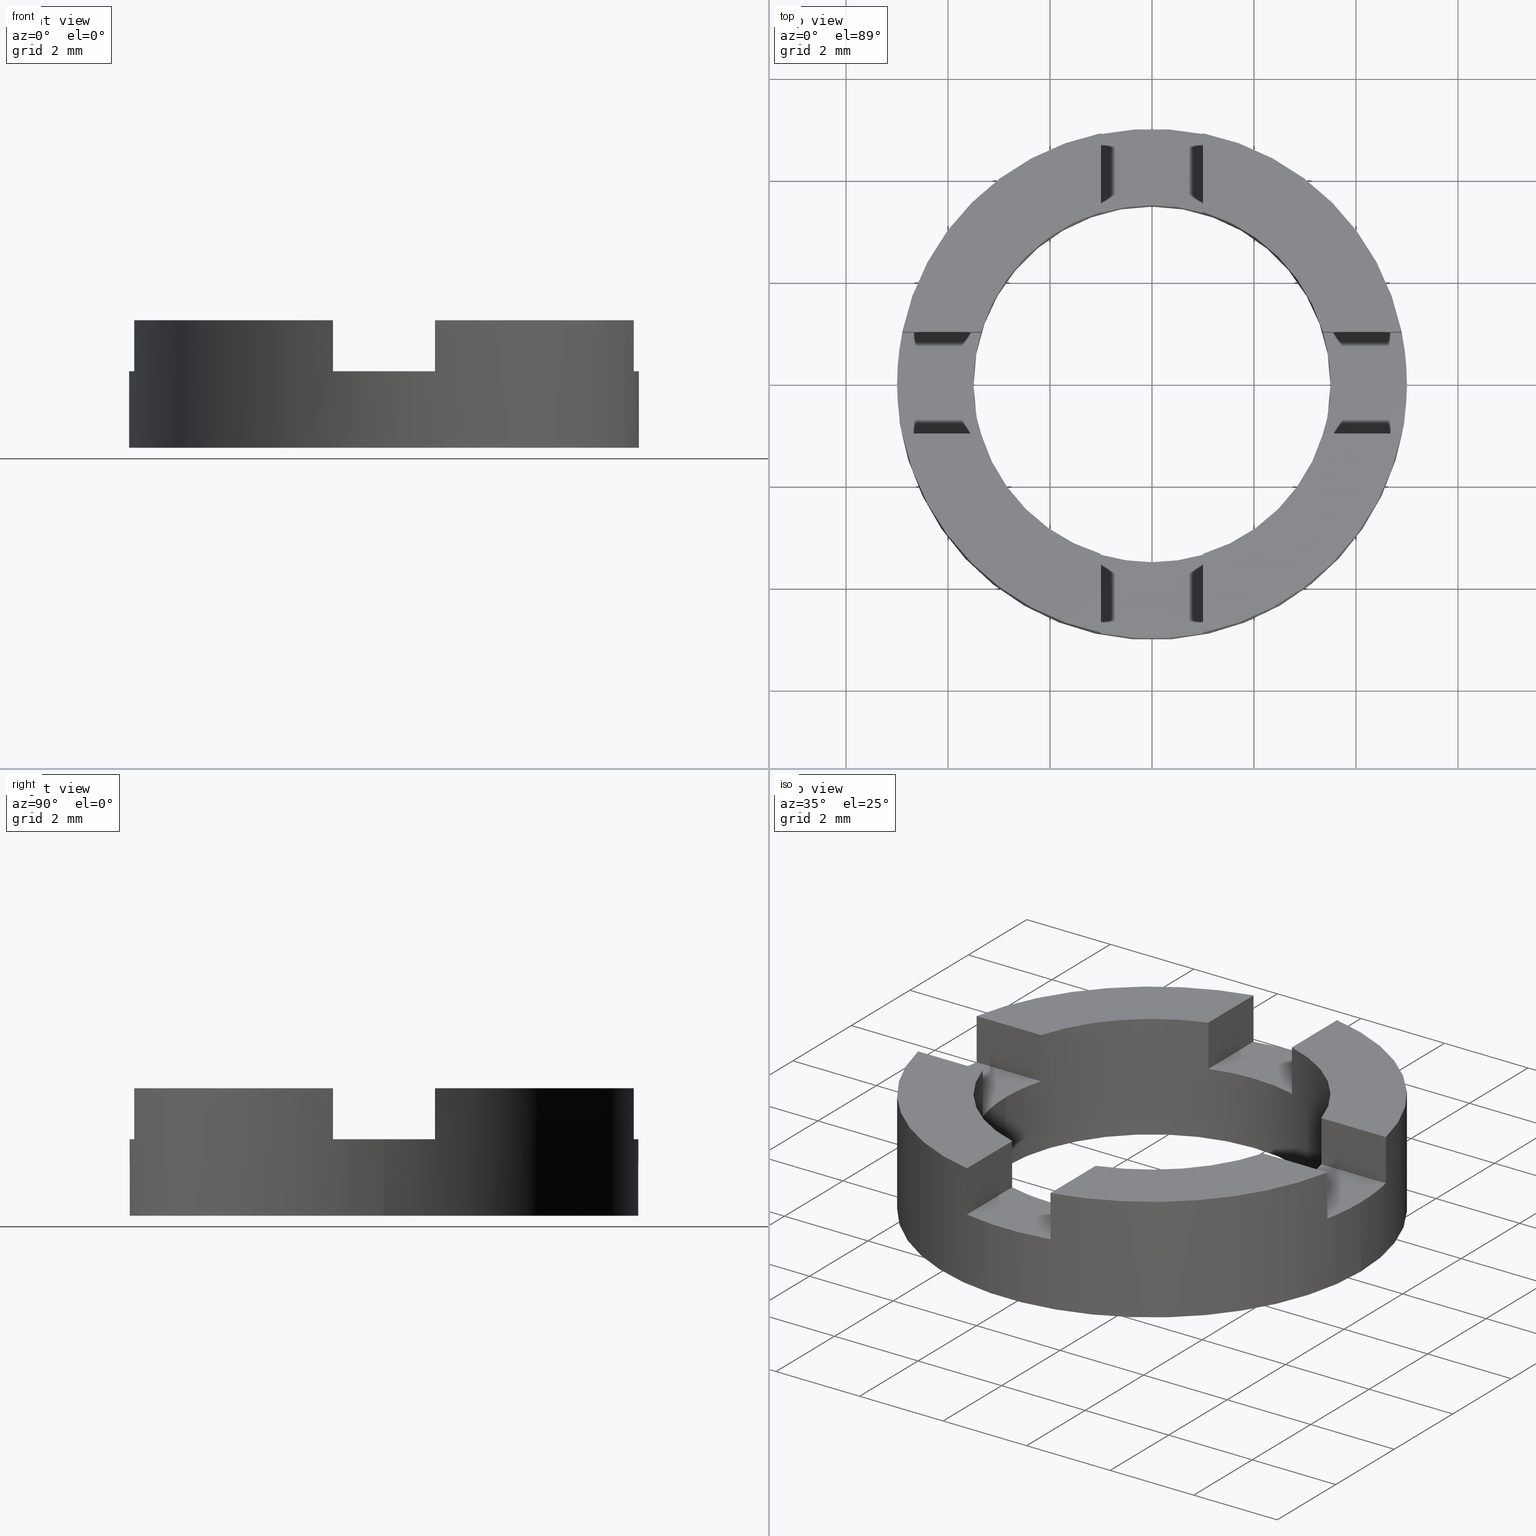
[diagram: canonical four-view strip — front | top / right | iso, engineering-drawing reading convention]
A machine part, canonical four-view strip (front | top / right | iso — engineering-drawing reading convention). The complete STEP part file that produces these views, byte-faithful:
ISO-10303-21;
HEADER;
FILE_DESCRIPTION (( 'STEP AP203' ),
    '1' );
FILE_NAME ('514026.STEP',
    '2024-12-26T02:52:09',
    ( 'MSI' ),
    ( '' ),
    'SwSTEP 2.0',
    'SolidWorks 2020',
    '' );
FILE_SCHEMA (( 'CONFIG_CONTROL_DESIGN' ));
ENDSEC;

DATA;
#1 = CARTESIAN_POINT ( 'NONE',  ( 3.305037895306199403, 1.000000000000045297, 1.500000000000000000 ) ) ;
#2 = CARTESIAN_POINT ( 'NONE',  ( 1.000000000000347500, -3.305037895306153661, 1.500000000000000000 ) ) ;
#3 = FACE_OUTER_BOUND ( 'NONE', #324, .T. ) ;
#4 = DIRECTION ( 'NONE',  ( 1.000000000000000000, 0.000000000000000000, 0.000000000000000000 ) ) ;
#5 = FACE_OUTER_BOUND ( 'NONE', #126, .T. ) ;
#6 = CARTESIAN_POINT ( 'NONE',  ( -3.354101966249594557, -1.000000000000301981, 2.500000000000000000 ) ) ;
#7 = PLANE ( 'NONE',  #491 ) ;
#8 = LINE ( 'NONE', #458, #266 ) ;
#9 = CARTESIAN_POINT ( 'NONE',  ( 3.354101966249698030, -0.9999999999999547029, 2.500000000000000000 ) ) ;
#10 = VECTOR ( 'NONE', #238, 1000.000000000000000 ) ;
#11 = DIRECTION ( 'NONE',  ( -1.000000000000000000, 0.000000000000000000, 0.000000000000000000 ) ) ;
#12 = DIRECTION ( 'NONE',  ( 1.000000000000000000, 0.000000000000000000, -0.000000000000000000 ) ) ;
#13 = CIRCLE ( 'NONE', #182, 5.000000000000000000 ) ;
#14 = DIRECTION ( 'NONE',  ( -0.000000000000000000, -0.000000000000000000, -1.000000000000000000 ) ) ;
#15 = CARTESIAN_POINT ( 'NONE',  ( -3.305037895305852125, -1.000000000000301981, 1.500000000000000000 ) ) ;
#16 = DIRECTION ( 'NONE',  ( 1.279323200775837961E-16, -1.000000000000000000, 0.000000000000000000 ) ) ;
#17 = EDGE_CURVE ( 'NONE', #327, #613, #662, .T. ) ;
#18 = DIRECTION ( 'NONE',  ( 0.000000000000000000, 0.000000000000000000, 1.000000000000000000 ) ) ;
#19 = DIRECTION ( 'NONE',  ( 1.000000000000000000, 0.000000000000000000, 0.000000000000000000 ) ) ;
#20 = DIRECTION ( 'NONE',  ( 1.000000000000000000, 0.000000000000000000, 0.000000000000000000 ) ) ;
#21 =( NAMED_UNIT ( * ) PLANE_ANGLE_UNIT ( ) SI_UNIT ( $, .RADIAN. ) );
#22 = DIRECTION ( 'NONE',  ( 1.000000000000000000, 0.000000000000000000, -0.000000000000000000 ) ) ;
#23 = EDGE_CURVE ( 'NONE', #170, #103, #405, .T. ) ;
#24 = AXIS2_PLACEMENT_3D ( 'NONE', #508, #407, #743 ) ;
#25 = CARTESIAN_POINT ( 'NONE',  ( 1.000000000000347722, -4.898979485566285597, 2.500000000000000000 ) ) ;
#26 = ORIENTED_EDGE ( 'NONE', *, *, #468, .T. ) ;
#27 = CARTESIAN_POINT ( 'NONE',  ( -3.305037895305853013, 0.9999999999996979083, 1.500000000000000000 ) ) ;
#28 = VERTEX_POINT ( 'NONE', #9 ) ;
#29 =( NAMED_UNIT ( * ) SI_UNIT ( $, .STERADIAN. ) SOLID_ANGLE_UNIT ( ) );
#30 = ORIENTED_EDGE ( 'NONE', *, *, #721, .F. ) ;
#31 = VERTEX_POINT ( 'NONE', #193 ) ;
#32 = AXIS2_PLACEMENT_3D ( 'NONE', #263, #339, #220 ) ;
#33 = DIRECTION ( 'NONE',  ( -0.000000000000000000, -0.000000000000000000, -1.000000000000000000 ) ) ;
#34 = EDGE_LOOP ( 'NONE', ( #36, #146, #288, #422 ) ) ;
#35 = AXIS2_PLACEMENT_3D ( 'NONE', #549, #47, #133 ) ;
#36 = ORIENTED_EDGE ( 'NONE', *, *, #551, .F. ) ;
#37 = CARTESIAN_POINT ( 'NONE',  ( -3.500000000000000000, 0.000000000000000000, 0.000000000000000000 ) ) ;
#38 = ORIENTED_EDGE ( 'NONE', *, *, #468, .F. ) ;
#39 = ORIENTED_EDGE ( 'NONE', *, *, #446, .T. ) ;
#40 = ADVANCED_FACE ( 'NONE', ( #113 ), #375, .F. ) ;
#41 = CARTESIAN_POINT ( 'NONE',  ( -4.898979485566417935, 0.9999999999996975752, 1.500000000000000000 ) ) ;
#42 = ORIENTED_EDGE ( 'NONE', *, *, #750, .F. ) ;
#43 = APPROVAL_ROLE ( '' ) ;
#44 = VERTEX_POINT ( 'NONE', #499 ) ;
#45 = CARTESIAN_POINT ( 'NONE',  ( 3.354101966249671385, 1.000000000000045297, 2.500000000000000000 ) ) ;
#46 = CARTESIAN_POINT ( 'NONE',  ( 3.305037895306199847, -0.9999999999999547029, 2.500000000000000000 ) ) ;
#47 = DIRECTION ( 'NONE',  ( 0.000000000000000000, 0.000000000000000000, -1.000000000000000000 ) ) ;
#48 = CARTESIAN_POINT ( 'NONE',  ( 0.000000000000000000, 0.000000000000000000, 2.500000000000000000 ) ) ;
#49 = CARTESIAN_POINT ( 'NONE',  ( -4.898979485566295367, -1.000000000000302425, 2.500000000000000000 ) ) ;
#50 = ORIENTED_EDGE ( 'NONE', *, *, #358, .T. ) ;
#51 = AXIS2_PLACEMENT_3D ( 'NONE', #189, #236, #285 ) ;
#52 = ORIENTED_EDGE ( 'NONE', *, *, #179, .T. ) ;
#53 = MANIFOLD_SOLID_BREP ( '�г�-����1', #307 ) ;
#54 = PLANE ( 'NONE',  #575 ) ;
#55 = CC_DESIGN_PERSON_AND_ORGANIZATION_ASSIGNMENT ( #623, #674, ( #253 ) ) ;
#56 = DIRECTION ( 'NONE',  ( -2.558646401551675429E-16, 1.000000000000000000, 0.000000000000000000 ) ) ;
#57 = ORIENTED_EDGE ( 'NONE', *, *, #446, .F. ) ;
#58 = EDGE_LOOP ( 'NONE', ( #436, #411, #423, #445 ) ) ;
#59 = DIRECTION ( 'NONE',  ( -1.000000000000000000, 0.000000000000000000, 0.000000000000000000 ) ) ;
#60 = VERTEX_POINT ( 'NONE', #317 ) ;
#61 = PLANE ( 'NONE',  #728 ) ;
#62 = AXIS2_PLACEMENT_3D ( 'NONE', #518, #512, #20 ) ;
#63 = ADVANCED_BREP_SHAPE_REPRESENTATION ( '514026', ( #53, #479 ), #328 ) ;
#64 = ORIENTED_EDGE ( 'NONE', *, *, #667, .T. ) ;
#65 = DIRECTION ( 'NONE',  ( 0.000000000000000000, 0.000000000000000000, 1.000000000000000000 ) ) ;
#66 = ORIENTED_EDGE ( 'NONE', *, *, #218, .F. ) ;
#67 = DIRECTION ( 'NONE',  ( 0.000000000000000000, 0.000000000000000000, 1.000000000000000000 ) ) ;
#68 = ORIENTED_EDGE ( 'NONE', *, *, #358, .F. ) ;
#69 = CARTESIAN_POINT ( 'NONE',  ( -4.898979485566417935, 0.9999999999996975752, 2.500000000000000000 ) ) ;
#70 = EDGE_CURVE ( 'NONE', #145, #170, #155, .T. ) ;
#71 = CARTESIAN_POINT ( 'NONE',  ( 0.000000000000000000, 0.000000000000000000, 1.500000000000000000 ) ) ;
#72 = DIRECTION ( 'NONE',  ( -0.000000000000000000, -0.000000000000000000, -1.000000000000000000 ) ) ;
#73 = CIRCLE ( 'NONE', #136, 3.500000000000000000 ) ;
#74 = CC_DESIGN_APPROVAL ( #192, ( #156 ) ) ;
#75 = DATE_AND_TIME ( #334, #366 ) ;
#76 = LINE ( 'NONE', #45, #634 ) ;
#77 = DIRECTION ( 'NONE',  ( -1.000000000000000000, -2.558646401551675429E-16, 0.000000000000000000 ) ) ;
#78 = SHAPE_DEFINITION_REPRESENTATION ( #740, #63 ) ;
#79 = LINE ( 'NONE', #367, #614 ) ;
#80 = EDGE_LOOP ( 'NONE', ( #402, #408, #441, #664 ) ) ;
#81 = CALENDAR_DATE ( 2024, 26, 12 ) ;
#82 = CIRCLE ( 'NONE', #160, 5.000000000000000000 ) ;
#83 = ORIENTED_EDGE ( 'NONE', *, *, #154, .T. ) ;
#84 = VECTOR ( 'NONE', #14, 1000.000000000000000 ) ;
#85 = EDGE_CURVE ( 'NONE', #331, #117, #134, .T. ) ;
#86 = PERSON_AND_ORGANIZATION ( #489, #453 ) ;
#87 = CARTESIAN_POINT ( 'NONE',  ( 0.000000000000000000, 0.000000000000000000, 2.500000000000000000 ) ) ;
#88 = VERTEX_POINT ( 'NONE', #41 ) ;
#89 = APPROVAL_DATE_TIME ( #627, #192 ) ;
#90 = VERTEX_POINT ( 'NONE', #727 ) ;
#91 = VECTOR ( 'NONE', #731, 1000.000000000000000 ) ;
#92 = VECTOR ( 'NONE', #630, 1000.000000000000000 ) ;
#93 = VECTOR ( 'NONE', #521, 1000.000000000000000 ) ;
#94 = LOCAL_TIME ( 10, 52, 9.000000000000000000, #602 ) ;
#95 = CIRCLE ( 'NONE', #51, 3.500000000000000000 ) ;
#96 = ORIENTED_EDGE ( 'NONE', *, *, #275, .F. ) ;
#97 = CARTESIAN_POINT ( 'NONE',  ( -3.354101966249774858, 0.9999999999996979083, 1.500000000000000000 ) ) ;
#98 = VERTEX_POINT ( 'NONE', #37 ) ;
#99 = AXIS2_PLACEMENT_3D ( 'NONE', #488, #540, #196 ) ;
#100 = CIRCLE ( 'NONE', #99, 3.500000000000000000 ) ;
#101 = ORIENTED_EDGE ( 'NONE', *, *, #720, .T. ) ;
#102 = CIRCLE ( 'NONE', #507, 3.500000000000000000 ) ;
#103 = VERTEX_POINT ( 'NONE', #437 ) ;
#104 = FACE_OUTER_BOUND ( 'NONE', #80, .T. ) ;
#105 = DIRECTION ( 'NONE',  ( 1.000000000000000000, 0.000000000000000000, -0.000000000000000000 ) ) ;
#106 = LINE ( 'NONE', #25, #355 ) ;
#107 = ORIENTED_EDGE ( 'NONE', *, *, #473, .T. ) ;
#108 = DIRECTION ( 'NONE',  ( 0.000000000000000000, 0.000000000000000000, 1.000000000000000000 ) ) ;
#109 = LINE ( 'NONE', #495, #92 ) ;
#110 = EDGE_LOOP ( 'NONE', ( #386, #661, #404, #412 ) ) ;
#111 = APPROVAL_STATUS ( 'not_yet_approved' ) ;
#112 = EDGE_LOOP ( 'NONE', ( #628, #647, #609, #447, #588, #382 ) ) ;
#113 = FACE_OUTER_BOUND ( 'NONE', #582, .T. ) ;
#114 = ORIENTED_EDGE ( 'NONE', *, *, #272, .F. ) ;
#115 = LINE ( 'NONE', #781, #119 ) ;
#116 = VECTOR ( 'NONE', #483, 1000.000000000000000 ) ;
#117 = VERTEX_POINT ( 'NONE', #97 ) ;
#118 = CARTESIAN_POINT ( 'NONE',  ( 5.000000000000000000, 6.123233995736766282E-16, 2.500000000000000000 ) ) ;
#119 = VECTOR ( 'NONE', #691, 1000.000000000000000 ) ;
#120 = LINE ( 'NONE', #535, #406 ) ;
#121 = VERTEX_POINT ( 'NONE', #210 ) ;
#122 = PRODUCT_RELATED_PRODUCT_CATEGORY ( 'detail', '', ( #244 ) ) ;
#123 = DIRECTION ( 'NONE',  ( -1.000000000000000000, -1.279323200775836975E-16, -0.000000000000000000 ) ) ;
#124 = EDGE_LOOP ( 'NONE', ( #57, #171, #430, #642, #336, #313, #635, #395, #147, #52, #376, #318 ) ) ;
#125 = LINE ( 'NONE', #486, #660 ) ;
#126 = EDGE_LOOP ( 'NONE', ( #680, #347, #572, #594 ) ) ;
#127 = ORIENTED_EDGE ( 'NONE', *, *, #709, .F. ) ;
#128 = ORIENTED_EDGE ( 'NONE', *, *, #260, .T. ) ;
#129 = FACE_OUTER_BOUND ( 'NONE', #543, .T. ) ;
#130 = ORIENTED_EDGE ( 'NONE', *, *, #190, .F. ) ;
#131 = CARTESIAN_POINT ( 'NONE',  ( -3.354101966249594557, -1.000000000000301981, 2.500000000000000000 ) ) ;
#132 = CARTESIAN_POINT ( 'NONE',  ( 3.354101966249671385, 1.000000000000045297, 1.500000000000000000 ) ) ;
#133 = DIRECTION ( 'NONE',  ( -1.000000000000000000, 0.000000000000000000, 0.000000000000000000 ) ) ;
#134 = CIRCLE ( 'NONE', #326, 3.500000000000000000 ) ;
#135 = EDGE_CURVE ( 'NONE', #651, #44, #392, .T. ) ;
#136 = AXIS2_PLACEMENT_3D ( 'NONE', #501, #65, #547 ) ;
#137 = LINE ( 'NONE', #753, #139 ) ;
#138 = ORIENTED_EDGE ( 'NONE', *, *, #217, .T. ) ;
#139 = VECTOR ( 'NONE', #464, 1000.000000000000000 ) ;
#140 = DIRECTION ( 'NONE',  ( 0.000000000000000000, 0.000000000000000000, 1.000000000000000000 ) ) ;
#141 = ORIENTED_EDGE ( 'NONE', *, *, #689, .T. ) ;
#142 = DIRECTION ( 'NONE',  ( -0.000000000000000000, -0.000000000000000000, -1.000000000000000000 ) ) ;
#143 = AXIS2_PLACEMENT_3D ( 'NONE', #2, #379, #735 ) ;
#144 = ORIENTED_EDGE ( 'NONE', *, *, #230, .F. ) ;
#145 = VERTEX_POINT ( 'NONE', #332 ) ;
#146 = ORIENTED_EDGE ( 'NONE', *, *, #603, .T. ) ;
#147 = ORIENTED_EDGE ( 'NONE', *, *, #425, .T. ) ;
#148 = VECTOR ( 'NONE', #590, 1000.000000000000000 ) ;
#149 = ORIENTED_EDGE ( 'NONE', *, *, #17, .F. ) ;
#150 = DIRECTION ( 'NONE',  ( -0.000000000000000000, -0.000000000000000000, -1.000000000000000000 ) ) ;
#151 = ORIENTED_EDGE ( 'NONE', *, *, #191, .F. ) ;
#152 = DIRECTION ( 'NONE',  ( 0.000000000000000000, -0.000000000000000000, -1.000000000000000000 ) ) ;
#154 = EDGE_CURVE ( 'NONE', #88, #304, #384, .T. ) ;
#153 = ORIENTED_EDGE ( 'NONE', *, *, #298, .F. ) ;
#155 = LINE ( 'NONE', #777, #148 ) ;
#156 = SECURITY_CLASSIFICATION ( '', '', #187 ) ;
#157 = ORIENTED_EDGE ( 'NONE', *, *, #260, .F. ) ;
#158 = ORIENTED_EDGE ( 'NONE', *, *, #775, .T. ) ;
#159 = CARTESIAN_POINT ( 'NONE',  ( 0.000000000000000000, 0.000000000000000000, 1.500000000000000000 ) ) ;
#160 = AXIS2_PLACEMENT_3D ( 'NONE', #48, #140, #194 ) ;
#161 = CARTESIAN_POINT ( 'NONE',  ( 3.354101966249698030, -0.9999999999999547029, 1.500000000000000000 ) ) ;
#162 = ADVANCED_FACE ( 'NONE', ( #378 ), #183, .T. ) ;
#163 = DIRECTION ( 'NONE',  ( 0.000000000000000000, -0.000000000000000000, 1.000000000000000000 ) ) ;
#164 = EDGE_CURVE ( 'NONE', #60, #28, #102, .T. ) ;
#165 = CARTESIAN_POINT ( 'NONE',  ( -3.354101966249774858, 0.9999999999996979083, 2.500000000000000000 ) ) ;
#166 = ORIENTED_EDGE ( 'NONE', *, *, #85, .F. ) ;
#167 = ADVANCED_FACE ( 'NONE', ( #670, #641 ), #228, .F. ) ;
#168 = CC_DESIGN_PERSON_AND_ORGANIZATION_ASSIGNMENT ( #197, #773, ( #244 ) ) ;
#169 = ORIENTED_EDGE ( 'NONE', *, *, #180, .F. ) ;
#170 = VERTEX_POINT ( 'NONE', #565 ) ;
#171 = ORIENTED_EDGE ( 'NONE', *, *, #621, .T. ) ;
#172 = AXIS2_PLACEMENT_3D ( 'NONE', #475, #524, #559 ) ;
#173 = DIRECTION ( 'NONE',  ( 0.000000000000000000, 0.000000000000000000, -1.000000000000000000 ) ) ;
#174 = CARTESIAN_POINT ( 'NONE',  ( -3.500000000000000000, 0.000000000000000000, 2.500000000000000000 ) ) ;
#175 = APPROVAL_STATUS ( 'not_yet_approved' ) ;
#176 = COORDINATED_UNIVERSAL_TIME_OFFSET ( 8, 0, .AHEAD. ) ;
#177 = DIRECTION ( 'NONE',  ( 0.000000000000000000, 0.000000000000000000, 1.000000000000000000 ) ) ;
#178 = PERSON_AND_ORGANIZATION ( #489, #453 ) ;
#179 = EDGE_CURVE ( 'NONE', #363, #145, #658, .T. ) ;
#180 = EDGE_CURVE ( 'NONE', #550, #707, #665, .T. ) ;
#181 = PERSON_AND_ORGANIZATION ( #489, #453 ) ;
#182 = AXIS2_PLACEMENT_3D ( 'NONE', #424, #509, #751 ) ;
#183 = PLANE ( 'NONE',  #242 ) ;
#184 = CALENDAR_DATE ( 2024, 26, 12 ) ;
#185 = DIRECTION ( 'NONE',  ( 1.000000000000000000, 1.279323200775837468E-16, 0.000000000000000000 ) ) ;
#186 = DATE_AND_TIME ( #184, #714 ) ;
#187 = SECURITY_CLASSIFICATION_LEVEL ( 'unclassified' ) ;
#188 = CARTESIAN_POINT ( 'NONE',  ( 0.000000000000000000, 0.000000000000000000, 0.000000000000000000 ) ) ;
#189 = CARTESIAN_POINT ( 'NONE',  ( 0.000000000000000000, 0.000000000000000000, 1.500000000000000000 ) ) ;
#190 = EDGE_CURVE ( 'NONE', #389, #28, #120, .T. ) ;
#191 = EDGE_CURVE ( 'NONE', #314, #349, #671, .T. ) ;
#192 = APPROVAL ( #111, 'δָ��' ) ;
#193 = CARTESIAN_POINT ( 'NONE',  ( 5.000000000000000000, 6.123233995736766282E-16, 1.500000000000000000 ) ) ;
#194 = DIRECTION ( 'NONE',  ( 1.000000000000000000, 0.000000000000000000, 0.000000000000000000 ) ) ;
#195 = DIRECTION ( 'NONE',  ( 1.000000000000000000, 0.000000000000000000, 0.000000000000000000 ) ) ;
#196 = DIRECTION ( 'NONE',  ( -1.000000000000000000, 0.000000000000000000, 0.000000000000000000 ) ) ;
#197 = PERSON_AND_ORGANIZATION ( #489, #453 ) ;
#198 = DIRECTION ( 'NONE',  ( -0.000000000000000000, -0.000000000000000000, -1.000000000000000000 ) ) ;
#199 = COORDINATED_UNIVERSAL_TIME_OFFSET ( 8, 0, .AHEAD. ) ;
#200 = CARTESIAN_POINT ( 'NONE',  ( -0.9999999999996526112, -3.354101966249788180, 2.500000000000000000 ) ) ;
#201 = EDGE_CURVE ( 'NONE', #354, #639, #137, .T. ) ;
#202 = DIRECTION ( 'NONE',  ( 0.000000000000000000, 0.000000000000000000, -1.000000000000000000 ) ) ;
#203 = AXIS2_PLACEMENT_3D ( 'NONE', #1, #484, #778 ) ;
#204 = DIRECTION ( 'NONE',  ( 0.000000000000000000, -0.000000000000000000, 1.000000000000000000 ) ) ;
#205 = ADVANCED_FACE ( 'NONE', ( #409 ), #467, .T. ) ;
#206 = DIRECTION ( 'NONE',  ( 0.000000000000000000, 0.000000000000000000, 1.000000000000000000 ) ) ;
#207 = CARTESIAN_POINT ( 'NONE',  ( -4.898979485566295367, -1.000000000000302425, 1.500000000000000000 ) ) ;
#208 = CARTESIAN_POINT ( 'NONE',  ( -3.305037895305853013, 0.9999999999996979083, 2.500000000000000000 ) ) ;
#209 = EDGE_CURVE ( 'NONE', #331, #98, #675, .T. ) ;
#210 = CARTESIAN_POINT ( 'NONE',  ( -3.354101966249594557, -1.000000000000301981, 1.500000000000000000 ) ) ;
#211 = ADVANCED_FACE ( 'NONE', ( #364 ), #600, .F. ) ;
#212 = AXIS2_PLACEMENT_3D ( 'NONE', #300, #108, #276 ) ;
#213 = DIRECTION ( 'NONE',  ( 0.000000000000000000, 0.000000000000000000, 1.000000000000000000 ) ) ;
#214 = CARTESIAN_POINT ( 'NONE',  ( -0.9999999999996523892, -4.898979485566426817, 2.500000000000000000 ) ) ;
#215 = VECTOR ( 'NONE', #759, 1000.000000000000000 ) ;
#216 = DIRECTION ( 'NONE',  ( -1.000000000000000000, 0.000000000000000000, -0.000000000000000000 ) ) ;
#217 = EDGE_CURVE ( 'NONE', #277, #702, #79, .T. ) ;
#218 = EDGE_CURVE ( 'NONE', #98, #639, #73, .T. ) ;
#219 = AXIS2_PLACEMENT_3D ( 'NONE', #663, #33, #273 ) ;
#220 = DIRECTION ( 'NONE',  ( 1.000000000000000000, 0.000000000000000000, 0.000000000000000000 ) ) ;
#221 = EDGE_CURVE ( 'NONE', #631, #291, #380, .T. ) ;
#222 = DIRECTION ( 'NONE',  ( 1.000000000000000000, 0.000000000000000000, 0.000000000000000000 ) ) ;
#223 = AXIS2_PLACEMENT_3D ( 'NONE', #237, #686, #342 ) ;
#224 = ADVANCED_FACE ( 'NONE', ( #620 ), #452, .T. ) ;
#225 = CC_DESIGN_PERSON_AND_ORGANIZATION_ASSIGNMENT ( #357, #283, ( #156 ) ) ;
#226 = LINE ( 'NONE', #208, #760 ) ;
#227 = PERSON_AND_ORGANIZATION_ROLE ( 'design_supplier' ) ;
#228 = PLANE ( 'NONE',  #172 ) ;
#229 = VECTOR ( 'NONE', #77, 1000.000000000000000 ) ;
#230 = EDGE_CURVE ( 'NONE', #145, #88, #633, .T. ) ;
#231 = DIRECTION ( 'NONE',  ( 0.000000000000000000, 0.000000000000000000, -1.000000000000000000 ) ) ;
#232 = LINE ( 'NONE', #654, #235 ) ;
#233 = DIRECTION ( 'NONE',  ( 0.000000000000000000, 0.000000000000000000, 1.000000000000000000 ) ) ;
#234 = DATE_TIME_ROLE ( 'classification_date' ) ;
#235 = VECTOR ( 'NONE', #553, 1000.000000000000000 ) ;
#236 = DIRECTION ( 'NONE',  ( 0.000000000000000000, -0.000000000000000000, 1.000000000000000000 ) ) ;
#237 = CARTESIAN_POINT ( 'NONE',  ( 0.000000000000000000, 0.000000000000000000, 2.500000000000000000 ) ) ;
#238 = DIRECTION ( 'NONE',  ( -1.279323200775837468E-16, 1.000000000000000000, -0.000000000000000000 ) ) ;
#239 = FACE_OUTER_BOUND ( 'NONE', #373, .T. ) ;
#240 = CIRCLE ( 'NONE', #385, 3.500000000000000000 ) ;
#241 = EDGE_CURVE ( 'NONE', #291, #121, #346, .T. ) ;
#242 = AXIS2_PLACEMENT_3D ( 'NONE', #768, #477, #105 ) ;
#243 = CIRCLE ( 'NONE', #212, 5.000000000000000000 ) ;
#244 = PRODUCT ( '514026', '514026', '', ( #534 ) ) ;
#245 = CARTESIAN_POINT ( 'NONE',  ( 1.000000000000347722, -4.898979485566285597, 2.500000000000000000 ) ) ;
#246 = CARTESIAN_POINT ( 'NONE',  ( 0.000000000000000000, 0.000000000000000000, 1.500000000000000000 ) ) ;
#247 = DIRECTION ( 'NONE',  ( 0.000000000000000000, 0.000000000000000000, -1.000000000000000000 ) ) ;
#248 = VECTOR ( 'NONE', #478, 1000.000000000000000 ) ;
#249 = DIRECTION ( 'NONE',  ( -1.000000000000000000, -1.279323200775837961E-16, 0.000000000000000000 ) ) ;
#250 = EDGE_CURVE ( 'NONE', #363, #121, #109, .T. ) ;
#251 = DIRECTION ( 'NONE',  ( 1.000000000000000000, 2.558646401551673950E-16, -0.000000000000000000 ) ) ;
#252 = DIRECTION ( 'NONE',  ( 0.000000000000000000, 0.000000000000000000, -1.000000000000000000 ) ) ;
#253 = PRODUCT_DEFINITION_FORMATION_WITH_SPECIFIED_SOURCE ( '�κ�', '', #244, .NOT_KNOWN. ) ;
#254 = VECTOR ( 'NONE', #185, 1000.000000000000000 ) ;
#255 = ADVANCED_FACE ( 'NONE', ( #345 ), #54, .F. ) ;
#256 = CIRCLE ( 'NONE', #223, 5.000000000000000000 ) ;
#257 = CARTESIAN_POINT ( 'NONE',  ( 0.000000000000000000, 0.000000000000000000, 2.500000000000000000 ) ) ;
#258 = CARTESIAN_POINT ( 'NONE',  ( 1.000000000000347500, -3.354101966249581235, 2.500000000000000000 ) ) ;
#259 = LINE ( 'NONE', #533, #525 ) ;
#260 = EDGE_CURVE ( 'NONE', #651, #613, #76, .T. ) ;
#261 = AXIS2_PLACEMENT_3D ( 'NONE', #257, #308, #711 ) ;
#262 = CYLINDRICAL_SURFACE ( 'NONE', #683, 3.500000000000000000 ) ;
#263 = CARTESIAN_POINT ( 'NONE',  ( 0.000000000000000000, 0.000000000000000000, 2.500000000000000000 ) ) ;
#264 = CARTESIAN_POINT ( 'NONE',  ( -1.000000000000000000, 3.305037895305897422, 1.500000000000000000 ) ) ;
#265 = ADVANCED_FACE ( 'NONE', ( #340 ), #505, .T. ) ;
#266 = VECTOR ( 'NONE', #198, 1000.000000000000000 ) ;
#267 = LINE ( 'NONE', #443, #771 ) ;
#268 = UNCERTAINTY_MEASURE_WITH_UNIT (LENGTH_MEASURE( 1.000000000000000082E-05 ), #519, 'distance_accuracy_value', 'NONE');
#269 = DIRECTION ( 'NONE',  ( 0.000000000000000000, 0.000000000000000000, -1.000000000000000000 ) ) ;
#270 = CARTESIAN_POINT ( 'NONE',  ( 0.000000000000000000, 0.000000000000000000, 2.500000000000000000 ) ) ;
#271 = CIRCLE ( 'NONE', #739, 3.500000000000000000 ) ;
#272 = EDGE_CURVE ( 'NONE', #277, #707, #95, .T. ) ;
#273 = DIRECTION ( 'NONE',  ( -1.000000000000000000, 0.000000000000000000, 0.000000000000000000 ) ) ;
#274 = CARTESIAN_POINT ( 'NONE',  ( 3.500000000000000000, 4.286263797015736595E-16, 1.500000000000000000 ) ) ;
#275 = EDGE_CURVE ( 'NONE', #354, #389, #100, .T. ) ;
#276 = DIRECTION ( 'NONE',  ( 1.000000000000000000, 0.000000000000000000, 0.000000000000000000 ) ) ;
#277 = VERTEX_POINT ( 'NONE', #455 ) ;
#278 = CC_DESIGN_APPROVAL ( #632, ( #608 ) ) ;
#279 = DIRECTION ( 'NONE',  ( -1.000000000000000000, 0.000000000000000000, 0.000000000000000000 ) ) ;
#280 = DIRECTION ( 'NONE',  ( -1.000000000000000000, 0.000000000000000000, 0.000000000000000000 ) ) ;
#281 = PLANE ( 'NONE',  #143 ) ;
#282 = EDGE_LOOP ( 'NONE', ( #416, #403, #615, #626, #101, #144 ) ) ;
#283 = PERSON_AND_ORGANIZATION_ROLE ( 'classification_officer' ) ;
#284 = ORIENTED_EDGE ( 'NONE', *, *, #733, .F. ) ;
#285 = DIRECTION ( 'NONE',  ( 1.000000000000000000, 0.000000000000000000, 0.000000000000000000 ) ) ;
#286 = EDGE_CURVE ( 'NONE', #659, #349, #625, .T. ) ;
#287 = DIRECTION ( 'NONE',  ( 0.000000000000000000, 0.000000000000000000, 1.000000000000000000 ) ) ;
#288 = ORIENTED_EDGE ( 'NONE', *, *, #737, .F. ) ;
#289 = DIRECTION ( 'NONE',  ( 0.000000000000000000, 0.000000000000000000, 1.000000000000000000 ) ) ;
#290 = ORIENTED_EDGE ( 'NONE', *, *, #537, .T. ) ;
#291 = VERTEX_POINT ( 'NONE', #6 ) ;
#292 = DIRECTION ( 'NONE',  ( 1.000000000000000000, 1.279323200775837468E-16, 0.000000000000000000 ) ) ;
#293 = ORIENTED_EDGE ( 'NONE', *, *, #603, .F. ) ;
#294 = EDGE_LOOP ( 'NONE', ( #673, #545, #157, #574, #153, #704, #169, #141, #310, #166, #413, #68 ) ) ;
#295 = DIRECTION ( 'NONE',  ( -1.000000000000000000, 0.000000000000000000, -0.000000000000000000 ) ) ;
#296 = CARTESIAN_POINT ( 'NONE',  ( 0.000000000000000000, 0.000000000000000000, 1.500000000000000000 ) ) ;
#297 = EDGE_CURVE ( 'NONE', #591, #397, #82, .T. ) ;
#298 = EDGE_CURVE ( 'NONE', #277, #44, #640, .T. ) ;
#299 = CARTESIAN_POINT ( 'NONE',  ( 0.000000000000000000, 0.000000000000000000, 2.500000000000000000 ) ) ;
#300 = CARTESIAN_POINT ( 'NONE',  ( 0.000000000000000000, 0.000000000000000000, 0.000000000000000000 ) ) ;
#301 = ORIENTED_EDGE ( 'NONE', *, *, #744, .F. ) ;
#302 = AXIS2_PLACEMENT_3D ( 'NONE', #159, #204, #461 ) ;
#303 = DIRECTION ( 'NONE',  ( -0.000000000000000000, -0.000000000000000000, -1.000000000000000000 ) ) ;
#304 = VERTEX_POINT ( 'NONE', #69 ) ;
#305 = EDGE_LOOP ( 'NONE', ( #312, #365, #450, #360 ) ) ;
#306 = AXIS2_PLACEMENT_3D ( 'NONE', #595, #249, #16 ) ;
#307 = CLOSED_SHELL ( 'NONE', ( #646, #723, #162, #522, #265, #224, #167, #435, #726, #515, #561, #255, #211, #466, #40, #463, #672, #316, #428, #580, #205 ) ) ;
#308 = DIRECTION ( 'NONE',  ( 0.000000000000000000, 0.000000000000000000, 1.000000000000000000 ) ) ;
#309 = CARTESIAN_POINT ( 'NONE',  ( 1.000000000000000000, 4.898979485566356651, 2.500000000000000000 ) ) ;
#310 = ORIENTED_EDGE ( 'NONE', *, *, #725, .F. ) ;
#311 = CARTESIAN_POINT ( 'NONE',  ( 0.000000000000000000, 0.000000000000000000, 1.500000000000000000 ) ) ;
#312 = ORIENTED_EDGE ( 'NONE', *, *, #557, .F. ) ;
#313 = ORIENTED_EDGE ( 'NONE', *, *, #191, .T. ) ;
#314 = VERTEX_POINT ( 'NONE', #472 ) ;
#315 = ORIENTED_EDGE ( 'NONE', *, *, #498, .F. ) ;
#316 = ADVANCED_FACE ( 'NONE', ( #372 ), #465, .F. ) ;
#317 = CARTESIAN_POINT ( 'NONE',  ( 1.000000000000347500, -3.354101966249581235, 2.500000000000000000 ) ) ;
#318 = ORIENTED_EDGE ( 'NONE', *, *, #23, .T. ) ;
#319 = PLANE ( 'NONE',  #362 ) ;
#320 = AXIS2_PLACEMENT_3D ( 'NONE', #87, #718, #567 ) ;
#321 = CARTESIAN_POINT ( 'NONE',  ( -1.000000000000000000, 3.354101966249684708, 1.500000000000000000 ) ) ;
#322 = EDGE_LOOP ( 'NONE', ( #427, #50 ) ) ;
#323 = ORIENTED_EDGE ( 'NONE', *, *, #456, .T. ) ;
#324 = EDGE_LOOP ( 'NONE', ( #96, #616, #66, #648, #315, #624, #564, #38, #127, #341, #653, #130 ) ) ;
#325 = DIRECTION ( 'NONE',  ( 0.000000000000000000, 0.000000000000000000, -1.000000000000000000 ) ) ;
#326 = AXIS2_PLACEMENT_3D ( 'NONE', #688, #579, #530 ) ;
#327 = VERTEX_POINT ( 'NONE', #716 ) ;
#328 =( GEOMETRIC_REPRESENTATION_CONTEXT ( 3 ) GLOBAL_UNCERTAINTY_ASSIGNED_CONTEXT ( ( #268 ) ) GLOBAL_UNIT_ASSIGNED_CONTEXT ( ( #519, #21, #29 ) ) REPRESENTATION_CONTEXT ( 'NONE', 'WORKASPACE' ) );
#329 = CARTESIAN_POINT ( 'NONE',  ( 0.000000000000000000, 0.000000000000000000, 1.500000000000000000 ) ) ;
#330 = PERSON_AND_ORGANIZATION_ROLE ( 'creator' ) ;
#331 = VERTEX_POINT ( 'NONE', #415 ) ;
#332 = CARTESIAN_POINT ( 'NONE',  ( -5.000000000000000000, 0.000000000000000000, 1.500000000000000000 ) ) ;
#333 = CARTESIAN_POINT ( 'NONE',  ( -0.9999999999996523892, -4.898979485566426817, 2.500000000000000000 ) ) ;
#334 = CALENDAR_DATE ( 2024, 26, 12 ) ;
#335 = APPLICATION_PROTOCOL_DEFINITION ( 'international standard', 'config_control_design', 1994, #432 ) ;
#336 = ORIENTED_EDGE ( 'NONE', *, *, #434, .T. ) ;
#337 = APPROVAL_DATE_TIME ( #75, #471 ) ;
#338 = APPROVAL_PERSON_ORGANIZATION ( #86, #192, #476 ) ;
#339 = DIRECTION ( 'NONE',  ( 0.000000000000000000, 0.000000000000000000, 1.000000000000000000 ) ) ;
#340 = FACE_OUTER_BOUND ( 'NONE', #305, .T. ) ;
#341 = ORIENTED_EDGE ( 'NONE', *, *, #763, .F. ) ;
#342 = DIRECTION ( 'NONE',  ( 1.000000000000000000, 0.000000000000000000, 0.000000000000000000 ) ) ;
#343 = AXIS2_PLACEMENT_3D ( 'NONE', #592, #690, #195 ) ;
#344 = CARTESIAN_POINT ( 'NONE',  ( -1.000000000000000000, 3.354101966249684708, 2.500000000000000000 ) ) ;
#345 = FACE_OUTER_BOUND ( 'NONE', #282, .T. ) ;
#346 = LINE ( 'NONE', #131, #84 ) ;
#347 = ORIENTED_EDGE ( 'NONE', *, *, #164, .F. ) ;
#348 = CALENDAR_DATE ( 2024, 26, 12 ) ;
#349 = VERTEX_POINT ( 'NONE', #566 ) ;
#350 = COORDINATED_UNIVERSAL_TIME_OFFSET ( 8, 0, .AHEAD. ) ;
#351 = CARTESIAN_POINT ( 'NONE',  ( -1.000000000000000000, 3.354101966249684708, 2.500000000000000000 ) ) ;
#352 = PLANE ( 'NONE',  #552 ) ;
#353 = CARTESIAN_POINT ( 'NONE',  ( -3.305037895305853013, 0.9999999999996979083, 1.500000000000000000 ) ) ;
#354 = VERTEX_POINT ( 'NONE', #274 ) ;
#355 = VECTOR ( 'NONE', #570, 1000.000000000000000 ) ;
#356 = VERTEX_POINT ( 'NONE', #528 ) ;
#357 = PERSON_AND_ORGANIZATION ( #489, #453 ) ;
#358 = EDGE_CURVE ( 'NONE', #639, #98, #629, .T. ) ;
#359 = VERTEX_POINT ( 'NONE', #333 ) ;
#360 = ORIENTED_EDGE ( 'NONE', *, *, #708, .T. ) ;
#361 = DATE_AND_TIME ( #348, #94 ) ;
#362 = AXIS2_PLACEMENT_3D ( 'NONE', #264, #724, #213 ) ;
#363 = VERTEX_POINT ( 'NONE', #207 ) ;
#364 = FACE_OUTER_BOUND ( 'NONE', #636, .T. ) ;
#365 = ORIENTED_EDGE ( 'NONE', *, *, #643, .F. ) ;
#366 = LOCAL_TIME ( 10, 52, 9.000000000000000000, #374 ) ;
#367 = CARTESIAN_POINT ( 'NONE',  ( 1.000000000000000000, 3.305037895305898310, 1.500000000000000000 ) ) ;
#368 = LOCAL_TIME ( 10, 52, 9.000000000000000000, #350 ) ;
#369 = DIRECTION ( 'NONE',  ( 2.558646401551673950E-16, -1.000000000000000000, 0.000000000000000000 ) ) ;
#370 = CARTESIAN_POINT ( 'NONE',  ( 1.000000000000347500, -3.305037895306153661, 2.500000000000000000 ) ) ;
#371 = ORIENTED_EDGE ( 'NONE', *, *, #709, .T. ) ;
#372 = FACE_OUTER_BOUND ( 'NONE', #112, .T. ) ;
#373 = EDGE_LOOP ( 'NONE', ( #323, #128, #149, #668 ) ) ;
#374 = COORDINATED_UNIVERSAL_TIME_OFFSET ( 8, 0, .AHEAD. ) ;
#375 = PLANE ( 'NONE',  #697 ) ;
#376 = ORIENTED_EDGE ( 'NONE', *, *, #70, .T. ) ;
#377 = VECTOR ( 'NONE', #638, 1000.000000000000000 ) ;
#378 = FACE_OUTER_BOUND ( 'NONE', #34, .T. ) ;
#379 = DIRECTION ( 'NONE',  ( 1.000000000000000000, 1.279323200775837468E-16, 0.000000000000000000 ) ) ;
#380 = LINE ( 'NONE', #388, #618 ) ;
#381 = VECTOR ( 'NONE', #123, 1000.000000000000000 ) ;
#382 = ORIENTED_EDGE ( 'NONE', *, *, #526, .F. ) ;
#383 = VECTOR ( 'NONE', #754, 1000.000000000000000 ) ;
#384 = LINE ( 'NONE', #678, #418 ) ;
#385 = AXIS2_PLACEMENT_3D ( 'NONE', #246, #152, #699 ) ;
#386 = ORIENTED_EDGE ( 'NONE', *, *, #720, .F. ) ;
#387 = ORIENTED_EDGE ( 'NONE', *, *, #583, .T. ) ;
#388 = CARTESIAN_POINT ( 'NONE',  ( -3.305037895305852125, -1.000000000000301981, 2.500000000000000000 ) ) ;
#389 = VERTEX_POINT ( 'NONE', #161 ) ;
#390 = ORIENTED_EDGE ( 'NONE', *, *, #526, .T. ) ;
#391 = CARTESIAN_POINT ( 'NONE',  ( 3.500000000000000000, 4.286263797015736595E-16, 0.000000000000000000 ) ) ;
#392 = CIRCLE ( 'NONE', #32, 3.500000000000000000 ) ;
#393 = ORIENTED_EDGE ( 'NONE', *, *, #774, .F. ) ;
#394 = CIRCLE ( 'NONE', #35, 3.500000000000000000 ) ;
#395 = ORIENTED_EDGE ( 'NONE', *, *, #708, .F. ) ;
#396 = ORIENTED_EDGE ( 'NONE', *, *, #70, .F. ) ;
#397 = VERTEX_POINT ( 'NONE', #431 ) ;
#398 = CARTESIAN_POINT ( 'NONE',  ( 0.000000000000000000, 0.000000000000000000, 1.500000000000000000 ) ) ;
#399 = AXIS2_PLACEMENT_3D ( 'NONE', #188, #695, #4 ) ;
#400 = VERTEX_POINT ( 'NONE', #560 ) ;
#401 = DIRECTION ( 'NONE',  ( -0.000000000000000000, -0.000000000000000000, -1.000000000000000000 ) ) ;
#402 = ORIENTED_EDGE ( 'NONE', *, *, #551, .T. ) ;
#403 = ORIENTED_EDGE ( 'NONE', *, *, #250, .T. ) ;
#404 = ORIENTED_EDGE ( 'NONE', *, *, #737, .T. ) ;
#405 = CIRCLE ( 'NONE', #399, 5.000000000000000000 ) ;
#406 = VECTOR ( 'NONE', #206, 1000.000000000000000 ) ;
#407 = DIRECTION ( 'NONE',  ( 0.000000000000000000, 0.000000000000000000, 1.000000000000000000 ) ) ;
#408 = ORIENTED_EDGE ( 'NONE', *, *, #180, .T. ) ;
#409 = FACE_OUTER_BOUND ( 'NONE', #584, .T. ) ;
#410 = DIRECTION ( 'NONE',  ( -1.000000000000000000, 0.000000000000000000, 0.000000000000000000 ) ) ;
#411 = ORIENTED_EDGE ( 'NONE', *, *, #135, .F. ) ;
#412 = ORIENTED_EDGE ( 'NONE', *, *, #154, .F. ) ;
#413 = ORIENTED_EDGE ( 'NONE', *, *, #209, .T. ) ;
#414 = AXIS2_PLACEMENT_3D ( 'NONE', #311, #269, #410 ) ;
#415 = CARTESIAN_POINT ( 'NONE',  ( -3.500000000000000000, 0.000000000000000000, 1.500000000000000000 ) ) ;
#416 = ORIENTED_EDGE ( 'NONE', *, *, #179, .F. ) ;
#417 = DIRECTION ( 'NONE',  ( -1.000000000000000000, 0.000000000000000000, 0.000000000000000000 ) ) ;
#418 = VECTOR ( 'NONE', #177, 1000.000000000000000 ) ;
#419 = ORIENTED_EDGE ( 'NONE', *, *, #217, .F. ) ;
#420 = CARTESIAN_POINT ( 'NONE',  ( 0.000000000000000000, 0.000000000000000000, 1.500000000000000000 ) ) ;
#421 = CARTESIAN_POINT ( 'NONE',  ( 4.898979485566365533, -0.9999999999999544809, 2.500000000000000000 ) ) ;
#422 = ORIENTED_EDGE ( 'NONE', *, *, #689, .F. ) ;
#423 = ORIENTED_EDGE ( 'NONE', *, *, #456, .F. ) ;
#424 = CARTESIAN_POINT ( 'NONE',  ( 0.000000000000000000, 0.000000000000000000, 2.500000000000000000 ) ) ;
#425 = EDGE_CURVE ( 'NONE', #631, #363, #612, .T. ) ;
#426 = AXIS2_PLACEMENT_3D ( 'NONE', #492, #504, #542 ) ;
#427 = ORIENTED_EDGE ( 'NONE', *, *, #218, .T. ) ;
#428 = ADVANCED_FACE ( 'NONE', ( #104 ), #319, .F. ) ;
#429 = VECTOR ( 'NONE', #72, 1000.000000000000000 ) ;
#430 = ORIENTED_EDGE ( 'NONE', *, *, #433, .T. ) ;
#431 = CARTESIAN_POINT ( 'NONE',  ( 4.898979485566365533, -0.9999999999999544809, 2.500000000000000000 ) ) ;
#432 = APPLICATION_CONTEXT ( 'configuration controlled 3d designs of mechanical parts and assemblies' ) ;
#433 = EDGE_CURVE ( 'NONE', #657, #397, #649, .T. ) ;
#434 = EDGE_CURVE ( 'NONE', #591, #314, #106, .T. ) ;
#435 = ADVANCED_FACE ( 'NONE', ( #644 ), #652, .T. ) ;
#436 = ORIENTED_EDGE ( 'NONE', *, *, #775, .F. ) ;
#437 = CARTESIAN_POINT ( 'NONE',  ( 5.000000000000000000, 6.123233995736766282E-16, 0.000000000000000000 ) ) ;
#438 = ORIENTED_EDGE ( 'NONE', *, *, #190, .T. ) ;
#439 = DESIGN_CONTEXT ( 'detailed design', #481, 'design' ) ;
#440 = APPLICATION_PROTOCOL_DEFINITION ( 'international standard', 'config_control_design', 1994, #481 ) ;
#441 = ORIENTED_EDGE ( 'NONE', *, *, #667, .F. ) ;
#442 = DIRECTION ( 'NONE',  ( 0.000000000000000000, 0.000000000000000000, 1.000000000000000000 ) ) ;
#443 = CARTESIAN_POINT ( 'NONE',  ( 3.305037895306199847, -0.9999999999999547029, 1.500000000000000000 ) ) ;
#444 = ORIENTED_EDGE ( 'NONE', *, *, #286, .T. ) ;
#445 = ORIENTED_EDGE ( 'NONE', *, *, #721, .T. ) ;
#446 = EDGE_CURVE ( 'NONE', #31, #103, #599, .T. ) ;
#447 = ORIENTED_EDGE ( 'NONE', *, *, #558, .T. ) ;
#448 = CARTESIAN_POINT ( 'NONE',  ( 0.000000000000000000, 0.000000000000000000, 2.500000000000000000 ) ) ;
#449 = CARTESIAN_POINT ( 'NONE',  ( -0.9999999999996526112, -3.354101966249788180, 1.500000000000000000 ) ) ;
#450 = ORIENTED_EDGE ( 'NONE', *, *, #221, .F. ) ;
#451 = EDGE_CURVE ( 'NONE', #613, #354, #394, .T. ) ;
#452 = PLANE ( 'NONE',  #24 ) ;
#453 = ORGANIZATION ( 'δָ��', 'δָ��', '' ) ;
#454 = CALENDAR_DATE ( 2024, 26, 12 ) ;
#455 = CARTESIAN_POINT ( 'NONE',  ( 1.000000000000000000, 3.354101966249684708, 1.500000000000000000 ) ) ;
#456 = EDGE_CURVE ( 'NONE', #90, #651, #115, .T. ) ;
#457 = CARTESIAN_POINT ( 'NONE',  ( 3.354101966249671385, 1.000000000000045297, 2.500000000000000000 ) ) ;
#458 = CARTESIAN_POINT ( 'NONE',  ( 4.898979485566346881, 1.000000000000045519, 2.500000000000000000 ) ) ;
#459 = APPROVAL_PERSON_ORGANIZATION ( #181, #471, #43 ) ;
#460 = DIRECTION ( 'NONE',  ( -1.000000000000000000, 0.000000000000000000, -0.000000000000000000 ) ) ;
#461 = DIRECTION ( 'NONE',  ( 1.000000000000000000, 0.000000000000000000, 0.000000000000000000 ) ) ;
#462 = AXIS2_PLACEMENT_3D ( 'NONE', #712, #163, #22 ) ;
#463 = ADVANCED_FACE ( 'NONE', ( #655 ), #497, .F. ) ;
#464 = DIRECTION ( 'NONE',  ( -0.000000000000000000, -0.000000000000000000, -1.000000000000000000 ) ) ;
#465 = PLANE ( 'NONE',  #596 ) ;
#466 = ADVANCED_FACE ( 'NONE', ( #129 ), #281, .F. ) ;
#467 = PLANE ( 'NONE',  #462 ) ;
#468 = EDGE_CURVE ( 'NONE', #659, #573, #125, .T. ) ;
#469 = APPROVAL_PERSON_ORGANIZATION ( #729, #632, #581 ) ;
#470 = CARTESIAN_POINT ( 'NONE',  ( 0.000000000000000000, 0.000000000000000000, 2.500000000000000000 ) ) ;
#471 = APPROVAL ( #175, 'δָ��' ) ;
#472 = CARTESIAN_POINT ( 'NONE',  ( 1.000000000000347722, -4.898979485566285597, 1.500000000000000000 ) ) ;
#473 = EDGE_CURVE ( 'NONE', #591, #60, #523, .T. ) ;
#474 = AXIS2_PLACEMENT_3D ( 'NONE', #398, #703, #59 ) ;
#475 = CARTESIAN_POINT ( 'NONE',  ( 0.000000000000000000, 0.000000000000000000, 0.000000000000000000 ) ) ;
#476 = APPROVAL_ROLE ( '' ) ;
#477 = DIRECTION ( 'NONE',  ( 0.000000000000000000, 0.000000000000000000, 1.000000000000000000 ) ) ;
#478 = DIRECTION ( 'NONE',  ( 1.279323200775837961E-16, -1.000000000000000000, 0.000000000000000000 ) ) ;
#479 = AXIS2_PLACEMENT_3D ( 'NONE', #578, #587, #222 ) ;
#480 = DIRECTION ( 'NONE',  ( -1.000000000000000000, 0.000000000000000000, 0.000000000000000000 ) ) ;
#481 = APPLICATION_CONTEXT ( 'configuration controlled 3d designs of mechanical parts and assemblies' ) ;
#482 = VECTOR ( 'NONE', #562, 1000.000000000000000 ) ;
#483 = DIRECTION ( 'NONE',  ( -0.000000000000000000, -0.000000000000000000, -1.000000000000000000 ) ) ;
#484 = DIRECTION ( 'NONE',  ( -1.279323200775836975E-16, 1.000000000000000000, 0.000000000000000000 ) ) ;
#485 = LINE ( 'NONE', #165, #500 ) ;
#486 = CARTESIAN_POINT ( 'NONE',  ( -0.9999999999996526112, -3.354101966249788180, 2.500000000000000000 ) ) ;
#487 = LINE ( 'NONE', #214, #757 ) ;
#488 = CARTESIAN_POINT ( 'NONE',  ( 0.000000000000000000, 0.000000000000000000, 1.500000000000000000 ) ) ;
#489 = PERSON ( 'δָ��', 'δָ��', 'δָ��', ('δָ��'), ('δָ��'), ('δָ��') ) ;
#490 = CARTESIAN_POINT ( 'NONE',  ( 1.000000000000000000, 4.898979485566356651, 2.500000000000000000 ) ) ;
#491 = AXIS2_PLACEMENT_3D ( 'NONE', #610, #289, #12 ) ;
#492 = CARTESIAN_POINT ( 'NONE',  ( 3.305037895306199847, -0.9999999999999547029, 1.500000000000000000 ) ) ;
#493 = LINE ( 'NONE', #309, #482 ) ;
#494 = LINE ( 'NONE', #762, #747 ) ;
#495 = CARTESIAN_POINT ( 'NONE',  ( -3.305037895305852125, -1.000000000000301981, 1.500000000000000000 ) ) ;
#496 = DIRECTION ( 'NONE',  ( 1.000000000000000000, -0.000000000000000000, 0.000000000000000000 ) ) ;
#497 = PLANE ( 'NONE',  #426 ) ;
#498 = EDGE_CURVE ( 'NONE', #121, #331, #240, .T. ) ;
#499 = CARTESIAN_POINT ( 'NONE',  ( 1.000000000000000000, 3.354101966249684708, 2.500000000000000000 ) ) ;
#500 = VECTOR ( 'NONE', #18, 1000.000000000000000 ) ;
#501 = CARTESIAN_POINT ( 'NONE',  ( 0.000000000000000000, 0.000000000000000000, 0.000000000000000000 ) ) ;
#502 = CARTESIAN_POINT ( 'NONE',  ( 4.898979485566365533, -0.9999999999999544809, 1.500000000000000000 ) ) ;
#503 = CIRCLE ( 'NONE', #302, 5.000000000000000000 ) ;
#504 = DIRECTION ( 'NONE',  ( 1.279323200775837468E-16, -1.000000000000000000, 0.000000000000000000 ) ) ;
#505 = PLANE ( 'NONE',  #261 ) ;
#506 = CYLINDRICAL_SURFACE ( 'NONE', #589, 5.000000000000000000 ) ;
#507 = AXIS2_PLACEMENT_3D ( 'NONE', #448, #442, #19 ) ;
#508 = CARTESIAN_POINT ( 'NONE',  ( 0.000000000000000000, 0.000000000000000000, 2.500000000000000000 ) ) ;
#509 = DIRECTION ( 'NONE',  ( 0.000000000000000000, 0.000000000000000000, 1.000000000000000000 ) ) ;
#510 = CIRCLE ( 'NONE', #713, 5.000000000000000000 ) ;
#511 = LINE ( 'NONE', #46, #254 ) ;
#512 = DIRECTION ( 'NONE',  ( 0.000000000000000000, 0.000000000000000000, 1.000000000000000000 ) ) ;
#513 = DIRECTION ( 'NONE',  ( -1.000000000000000000, 0.000000000000000000, 0.000000000000000000 ) ) ;
#514 = AXIS2_PLACEMENT_3D ( 'NONE', #694, #287, #541 ) ;
#515 = ADVANCED_FACE ( 'NONE', ( #776 ), #742, .F. ) ;
#516 = DIRECTION ( 'NONE',  ( -1.000000000000000000, -2.558646401551675429E-16, 0.000000000000000000 ) ) ;
#517 = CIRCLE ( 'NONE', #701, 5.000000000000000000 ) ;
#518 = CARTESIAN_POINT ( 'NONE',  ( 0.000000000000000000, 0.000000000000000000, 0.000000000000000000 ) ) ;
#519 =( LENGTH_UNIT ( ) NAMED_UNIT ( * ) SI_UNIT ( .MILLI., .METRE. ) );
#520 = CIRCLE ( 'NONE', #514, 3.500000000000000000 ) ;
#521 = DIRECTION ( 'NONE',  ( 0.000000000000000000, 0.000000000000000000, 1.000000000000000000 ) ) ;
#522 = ADVANCED_FACE ( 'NONE', ( #5 ), #7, .T. ) ;
#523 = LINE ( 'NONE', #370, #10 ) ;
#524 = DIRECTION ( 'NONE',  ( 0.000000000000000000, 0.000000000000000000, 1.000000000000000000 ) ) ;
#525 = VECTOR ( 'NONE', #586, 1000.000000000000000 ) ;
#526 = EDGE_CURVE ( 'NONE', #327, #31, #517, .T. ) ;
#527 = VECTOR ( 'NONE', #142, 1000.000000000000000 ) ;
#528 = CARTESIAN_POINT ( 'NONE',  ( -1.000000000000000000, 4.898979485566356651, 2.500000000000000000 ) ) ;
#529 = VECTOR ( 'NONE', #607, 1000.000000000000000 ) ;
#530 = DIRECTION ( 'NONE',  ( -1.000000000000000000, 0.000000000000000000, 0.000000000000000000 ) ) ;
#531 = CARTESIAN_POINT ( 'NONE',  ( -1.000000000000000000, 4.898979485566356651, 2.500000000000000000 ) ) ;
#532 = LINE ( 'NONE', #27, #229 ) ;
#533 = CARTESIAN_POINT ( 'NONE',  ( -1.000000000000000000, 3.305037895305897422, 2.500000000000000000 ) ) ;
#534 = MECHANICAL_CONTEXT ( 'NONE', #432, 'mechanical' ) ;
#535 = CARTESIAN_POINT ( 'NONE',  ( 3.354101966249698030, -0.9999999999999547029, 2.500000000000000000 ) ) ;
#536 = EDGE_CURVE ( 'NONE', #90, #327, #8, .T. ) ;
#537 = EDGE_CURVE ( 'NONE', #103, #170, #243, .T. ) ;
#538 = PLANE ( 'NONE',  #203 ) ;
#539 = DIRECTION ( 'NONE',  ( 0.000000000000000000, 0.000000000000000000, -1.000000000000000000 ) ) ;
#540 = DIRECTION ( 'NONE',  ( 0.000000000000000000, 0.000000000000000000, -1.000000000000000000 ) ) ;
#541 = DIRECTION ( 'NONE',  ( 1.000000000000000000, 0.000000000000000000, 0.000000000000000000 ) ) ;
#542 = DIRECTION ( 'NONE',  ( 1.000000000000000000, 1.279323200775837468E-16, 0.000000000000000000 ) ) ;
#543 = EDGE_LOOP ( 'NONE', ( #107, #622, #301, #700 ) ) ;
#544 = CARTESIAN_POINT ( 'NONE',  ( 1.000000000000000000, 4.898979485566356651, 1.500000000000000000 ) ) ;
#545 = ORIENTED_EDGE ( 'NONE', *, *, #451, .F. ) ;
#546 = ORIENTED_EDGE ( 'NONE', *, *, #425, .F. ) ;
#547 = DIRECTION ( 'NONE',  ( 1.000000000000000000, 0.000000000000000000, 0.000000000000000000 ) ) ;
#548 = DIRECTION ( 'NONE',  ( 1.000000000000000000, 2.558646401551673950E-16, 0.000000000000000000 ) ) ;
#549 = CARTESIAN_POINT ( 'NONE',  ( 0.000000000000000000, 0.000000000000000000, 1.500000000000000000 ) ) ;
#550 = VERTEX_POINT ( 'NONE', #344 ) ;
#551 = EDGE_CURVE ( 'NONE', #356, #550, #259, .T. ) ;
#552 = AXIS2_PLACEMENT_3D ( 'NONE', #15, #369, #548 ) ;
#553 = DIRECTION ( 'NONE',  ( -1.279323200775837468E-16, 1.000000000000000000, -0.000000000000000000 ) ) ;
#554 = ORIENTED_EDGE ( 'NONE', *, *, #241, .T. ) ;
#555 = EDGE_LOOP ( 'NONE', ( #390, #39, #290, #396, #685, #83, #293, #684, #42, #606, #30, #645 ) ) ;
#556 = DIRECTION ( 'NONE',  ( 0.000000000000000000, 1.000000000000000000, 0.000000000000000000 ) ) ;
#557 = EDGE_CURVE ( 'NONE', #573, #359, #769, .T. ) ;
#558 = EDGE_CURVE ( 'NONE', #389, #657, #267, .T. ) ;
#559 = DIRECTION ( 'NONE',  ( 1.000000000000000000, 0.000000000000000000, -0.000000000000000000 ) ) ;
#560 = CARTESIAN_POINT ( 'NONE',  ( -1.000000000000000000, 4.898979485566356651, 1.500000000000000000 ) ) ;
#561 = ADVANCED_FACE ( 'NONE', ( #780 ), #352, .F. ) ;
#562 = DIRECTION ( 'NONE',  ( 0.000000000000000000, 0.000000000000000000, 1.000000000000000000 ) ) ;
#563 = EDGE_LOOP ( 'NONE', ( #706, #692 ) ) ;
#564 = ORIENTED_EDGE ( 'NONE', *, *, #643, .T. ) ;
#565 = CARTESIAN_POINT ( 'NONE',  ( -5.000000000000000000, 0.000000000000000000, 0.000000000000000000 ) ) ;
#566 = CARTESIAN_POINT ( 'NONE',  ( -0.9999999999996523892, -4.898979485566426817, 1.500000000000000000 ) ) ;
#567 = DIRECTION ( 'NONE',  ( 1.000000000000000000, 0.000000000000000000, 0.000000000000000000 ) ) ;
#568 = ORIENTED_EDGE ( 'NONE', *, *, #221, .T. ) ;
#569 = CC_DESIGN_DATE_AND_TIME_ASSIGNMENT ( #186, #782, ( #608 ) ) ;
#570 = DIRECTION ( 'NONE',  ( -0.000000000000000000, -0.000000000000000000, -1.000000000000000000 ) ) ;
#571 = ORIENTED_EDGE ( 'NONE', *, *, #433, .F. ) ;
#572 = ORIENTED_EDGE ( 'NONE', *, *, #473, .F. ) ;
#573 = VERTEX_POINT ( 'NONE', #200 ) ;
#574 = ORIENTED_EDGE ( 'NONE', *, *, #135, .T. ) ;
#575 = AXIS2_PLACEMENT_3D ( 'NONE', #296, #202, #460 ) ;
#576 = CARTESIAN_POINT ( 'NONE',  ( -4.898979485566295367, -1.000000000000302425, 2.500000000000000000 ) ) ;
#577 = ORIENTED_EDGE ( 'NONE', *, *, #750, .T. ) ;
#578 = CARTESIAN_POINT ( 'NONE',  ( 0.000000000000000000, 0.000000000000000000, 0.000000000000000000 ) ) ;
#579 = DIRECTION ( 'NONE',  ( 0.000000000000000000, -0.000000000000000000, -1.000000000000000000 ) ) ;
#580 = ADVANCED_FACE ( 'NONE', ( #783 ), #61, .F. ) ;
#581 = APPROVAL_ROLE ( '' ) ;
#582 = EDGE_LOOP ( 'NONE', ( #677, #371, #444, #151 ) ) ;
#583 = EDGE_CURVE ( 'NONE', #28, #397, #511, .T. ) ;
#584 = EDGE_LOOP ( 'NONE', ( #577, #64, #114, #138 ) ) ;
#585 = CARTESIAN_POINT ( 'NONE',  ( -1.000000000000000000, 3.305037895305897422, 1.500000000000000000 ) ) ;
#586 = DIRECTION ( 'NONE',  ( -0.000000000000000000, -1.000000000000000000, -0.000000000000000000 ) ) ;
#587 = DIRECTION ( 'NONE',  ( 0.000000000000000000, 0.000000000000000000, 1.000000000000000000 ) ) ;
#588 = ORIENTED_EDGE ( 'NONE', *, *, #621, .F. ) ;
#589 = AXIS2_PLACEMENT_3D ( 'NONE', #270, #303, #417 ) ;
#590 = DIRECTION ( 'NONE',  ( -0.000000000000000000, -0.000000000000000000, -1.000000000000000000 ) ) ;
#591 = VERTEX_POINT ( 'NONE', #245 ) ;
#592 = CARTESIAN_POINT ( 'NONE',  ( 0.000000000000000000, 0.000000000000000000, 2.500000000000000000 ) ) ;
#593 = ORIENTED_EDGE ( 'NONE', *, *, #558, .F. ) ;
#594 = ORIENTED_EDGE ( 'NONE', *, *, #297, .T. ) ;
#595 = CARTESIAN_POINT ( 'NONE',  ( -0.9999999999996526112, -3.305037895306154550, 1.500000000000000000 ) ) ;
#596 = AXIS2_PLACEMENT_3D ( 'NONE', #329, #325, #216 ) ;
#597 = ORIENTED_EDGE ( 'NONE', *, *, #286, .F. ) ;
#598 = CARTESIAN_POINT ( 'NONE',  ( 0.000000000000000000, 0.000000000000000000, 1.500000000000000000 ) ) ;
#599 = LINE ( 'NONE', #118, #91 ) ;
#600 = PLANE ( 'NONE',  #306 ) ;
#601 = CARTESIAN_POINT ( 'NONE',  ( 0.000000000000000000, 0.000000000000000000, 1.500000000000000000 ) ) ;
#602 = COORDINATED_UNIVERSAL_TIME_OFFSET ( 8, 0, .AHEAD. ) ;
#603 = EDGE_CURVE ( 'NONE', #356, #304, #256, .T. ) ;
#604 = EDGE_LOOP ( 'NONE', ( #593, #438, #387, #571 ) ) ;
#605 = VECTOR ( 'NONE', #736, 1000.000000000000000 ) ;
#606 = ORIENTED_EDGE ( 'NONE', *, *, #774, .T. ) ;
#607 = DIRECTION ( 'NONE',  ( -0.000000000000000000, -1.000000000000000000, -0.000000000000000000 ) ) ;
#608 = PRODUCT_DEFINITION ( 'δ֪', '', #253, #439 ) ;
#609 = ORIENTED_EDGE ( 'NONE', *, *, #275, .T. ) ;
#610 = CARTESIAN_POINT ( 'NONE',  ( 0.000000000000000000, 0.000000000000000000, 2.500000000000000000 ) ) ;
#611 = CC_DESIGN_DATE_AND_TIME_ASSIGNMENT ( #361, #234, ( #156 ) ) ;
#612 = LINE ( 'NONE', #576, #377 ) ;
#613 = VERTEX_POINT ( 'NONE', #132 ) ;
#614 = VECTOR ( 'NONE', #696, 1000.000000000000000 ) ;
#615 = ORIENTED_EDGE ( 'NONE', *, *, #498, .T. ) ;
#616 = ORIENTED_EDGE ( 'NONE', *, *, #201, .T. ) ;
#617 = PERSON_AND_ORGANIZATION ( #489, #453 ) ;
#618 = VECTOR ( 'NONE', #251, 1000.000000000000000 ) ;
#619 = ORIENTED_EDGE ( 'NONE', *, *, #250, .F. ) ;
#620 = FACE_OUTER_BOUND ( 'NONE', #58, .T. ) ;
#621 = EDGE_CURVE ( 'NONE', #31, #657, #510, .T. ) ;
#622 = ORIENTED_EDGE ( 'NONE', *, *, #763, .T. ) ;
#623 = PERSON_AND_ORGANIZATION ( #489, #453 ) ;
#624 = ORIENTED_EDGE ( 'NONE', *, *, #241, .F. ) ;
#625 = LINE ( 'NONE', #693, #605 ) ;
#626 = ORIENTED_EDGE ( 'NONE', *, *, #85, .T. ) ;
#627 = DATE_AND_TIME ( #81, #368 ) ;
#628 = ORIENTED_EDGE ( 'NONE', *, *, #17, .T. ) ;
#629 = CIRCLE ( 'NONE', #62, 3.500000000000000000 ) ;
#630 = DIRECTION ( 'NONE',  ( 1.000000000000000000, 2.558646401551673950E-16, -0.000000000000000000 ) ) ;
#631 = VERTEX_POINT ( 'NONE', #49 ) ;
#632 = APPROVAL ( #732, 'δָ��' ) ;
#633 = CIRCLE ( 'NONE', #474, 5.000000000000000000 ) ;
#634 = VECTOR ( 'NONE', #150, 1000.000000000000000 ) ;
#635 = ORIENTED_EDGE ( 'NONE', *, *, #733, .T. ) ;
#636 = EDGE_LOOP ( 'NONE', ( #597, #26, #650, #284 ) ) ;
#637 = VERTEX_POINT ( 'NONE', #698 ) ;
#638 = DIRECTION ( 'NONE',  ( -0.000000000000000000, -0.000000000000000000, -1.000000000000000000 ) ) ;
#639 = VERTEX_POINT ( 'NONE', #391 ) ;
#640 = LINE ( 'NONE', #681, #93 ) ;
#641 = FACE_BOUND ( 'NONE', #322, .T. ) ;
#642 = ORIENTED_EDGE ( 'NONE', *, *, #297, .F. ) ;
#643 = EDGE_CURVE ( 'NONE', #291, #573, #520, .T. ) ;
#644 = FACE_OUTER_BOUND ( 'NONE', #124, .T. ) ;
#645 = ORIENTED_EDGE ( 'NONE', *, *, #536, .T. ) ;
#646 = ADVANCED_FACE ( 'NONE', ( #3 ), #262, .F. ) ;
#647 = ORIENTED_EDGE ( 'NONE', *, *, #451, .T. ) ;
#648 = ORIENTED_EDGE ( 'NONE', *, *, #209, .F. ) ;
#649 = LINE ( 'NONE', #421, #383 ) ;
#650 = ORIENTED_EDGE ( 'NONE', *, *, #557, .T. ) ;
#651 = VERTEX_POINT ( 'NONE', #457 ) ;
#652 = CYLINDRICAL_SURFACE ( 'NONE', #219, 5.000000000000000000 ) ;
#653 = ORIENTED_EDGE ( 'NONE', *, *, #164, .T. ) ;
#654 = CARTESIAN_POINT ( 'NONE',  ( 1.000000000000347500, -3.305037895306153661, 1.500000000000000000 ) ) ;
#655 = FACE_OUTER_BOUND ( 'NONE', #604, .T. ) ;
#656 = EDGE_LOOP ( 'NONE', ( #419, #669, #158, #393 ) ) ;
#657 = VERTEX_POINT ( 'NONE', #502 ) ;
#658 = CIRCLE ( 'NONE', #764, 5.000000000000000000 ) ;
#659 = VERTEX_POINT ( 'NONE', #449 ) ;
#660 = VECTOR ( 'NONE', #233, 1000.000000000000000 ) ;
#661 = ORIENTED_EDGE ( 'NONE', *, *, #725, .T. ) ;
#662 = LINE ( 'NONE', #749, #381 ) ;
#663 = CARTESIAN_POINT ( 'NONE',  ( 0.000000000000000000, 0.000000000000000000, 2.500000000000000000 ) ) ;
#664 = ORIENTED_EDGE ( 'NONE', *, *, #666, .F. ) ;
#665 = LINE ( 'NONE', #351, #116 ) ;
#666 = EDGE_CURVE ( 'NONE', #356, #400, #765, .T. ) ;
#667 = EDGE_CURVE ( 'NONE', #400, #707, #767, .T. ) ;
#668 = ORIENTED_EDGE ( 'NONE', *, *, #536, .F. ) ;
#669 = ORIENTED_EDGE ( 'NONE', *, *, #298, .T. ) ;
#670 = FACE_OUTER_BOUND ( 'NONE', #563, .T. ) ;
#671 = CIRCLE ( 'NONE', #414, 5.000000000000000000 ) ;
#672 = ADVANCED_FACE ( 'NONE', ( #239 ), #538, .F. ) ;
#673 = ORIENTED_EDGE ( 'NONE', *, *, #201, .F. ) ;
#674 = PERSON_AND_ORGANIZATION_ROLE ( 'creator' ) ;
#675 = LINE ( 'NONE', #174, #429 ) ;
#676 = EDGE_LOOP ( 'NONE', ( #568, #554, #619, #546 ) ) ;
#677 = ORIENTED_EDGE ( 'NONE', *, *, #744, .T. ) ;
#678 = CARTESIAN_POINT ( 'NONE',  ( -4.898979485566417935, 0.9999999999996975752, 2.500000000000000000 ) ) ;
#679 = VERTEX_POINT ( 'NONE', #705 ) ;
#680 = ORIENTED_EDGE ( 'NONE', *, *, #583, .F. ) ;
#681 = CARTESIAN_POINT ( 'NONE',  ( 1.000000000000000000, 3.354101966249684708, 2.500000000000000000 ) ) ;
#682 = VERTEX_POINT ( 'NONE', #490 ) ;
#683 = AXIS2_PLACEMENT_3D ( 'NONE', #299, #741, #11 ) ;
#684 = ORIENTED_EDGE ( 'NONE', *, *, #666, .T. ) ;
#685 = ORIENTED_EDGE ( 'NONE', *, *, #230, .T. ) ;
#686 = DIRECTION ( 'NONE',  ( 0.000000000000000000, 0.000000000000000000, 1.000000000000000000 ) ) ;
#687 = CARTESIAN_POINT ( 'NONE',  ( -0.9999999999996526112, -3.305037895306154550, 2.500000000000000000 ) ) ;
#688 = CARTESIAN_POINT ( 'NONE',  ( 0.000000000000000000, 0.000000000000000000, 1.500000000000000000 ) ) ;
#689 = EDGE_CURVE ( 'NONE', #550, #679, #766, .T. ) ;
#690 = DIRECTION ( 'NONE',  ( 0.000000000000000000, 0.000000000000000000, 1.000000000000000000 ) ) ;
#691 = DIRECTION ( 'NONE',  ( -1.000000000000000000, -1.279323200775836975E-16, -0.000000000000000000 ) ) ;
#692 = ORIENTED_EDGE ( 'NONE', *, *, #537, .F. ) ;
#693 = CARTESIAN_POINT ( 'NONE',  ( -0.9999999999996526112, -3.305037895306154550, 1.500000000000000000 ) ) ;
#694 = CARTESIAN_POINT ( 'NONE',  ( 0.000000000000000000, 0.000000000000000000, 2.500000000000000000 ) ) ;
#695 = DIRECTION ( 'NONE',  ( 0.000000000000000000, 0.000000000000000000, 1.000000000000000000 ) ) ;
#696 = DIRECTION ( 'NONE',  ( 0.000000000000000000, 1.000000000000000000, 0.000000000000000000 ) ) ;
#697 = AXIS2_PLACEMENT_3D ( 'NONE', #598, #247, #295 ) ;
#698 = CARTESIAN_POINT ( 'NONE',  ( 1.000000000000347500, -3.354101966249581235, 1.500000000000000000 ) ) ;
#699 = DIRECTION ( 'NONE',  ( -1.000000000000000000, 0.000000000000000000, 0.000000000000000000 ) ) ;
#700 = ORIENTED_EDGE ( 'NONE', *, *, #434, .F. ) ;
#701 = AXIS2_PLACEMENT_3D ( 'NONE', #770, #539, #480 ) ;
#702 = VERTEX_POINT ( 'NONE', #544 ) ;
#703 = DIRECTION ( 'NONE',  ( 0.000000000000000000, -0.000000000000000000, -1.000000000000000000 ) ) ;
#704 = ORIENTED_EDGE ( 'NONE', *, *, #272, .T. ) ;
#705 = CARTESIAN_POINT ( 'NONE',  ( -3.354101966249774858, 0.9999999999996979083, 2.500000000000000000 ) ) ;
#706 = ORIENTED_EDGE ( 'NONE', *, *, #23, .F. ) ;
#707 = VERTEX_POINT ( 'NONE', #321 ) ;
#708 = EDGE_CURVE ( 'NONE', #631, #359, #13, .T. ) ;
#709 = EDGE_CURVE ( 'NONE', #637, #659, #271, .T. ) ;
#710 = CC_DESIGN_SECURITY_CLASSIFICATION ( #156, ( #253 ) ) ;
#711 = DIRECTION ( 'NONE',  ( 1.000000000000000000, 0.000000000000000000, -0.000000000000000000 ) ) ;
#712 = CARTESIAN_POINT ( 'NONE',  ( 0.000000000000000000, 0.000000000000000000, 1.500000000000000000 ) ) ;
#713 = AXIS2_PLACEMENT_3D ( 'NONE', #601, #231, #280 ) ;
#714 = LOCAL_TIME ( 10, 52, 9.000000000000000000, #199 ) ;
#715 = DATE_AND_TIME ( #454, #717 ) ;
#716 = CARTESIAN_POINT ( 'NONE',  ( 4.898979485566346881, 1.000000000000045519, 1.500000000000000000 ) ) ;
#717 = LOCAL_TIME ( 10, 52, 9.000000000000000000, #176 ) ;
#718 = DIRECTION ( 'NONE',  ( 0.000000000000000000, 0.000000000000000000, 1.000000000000000000 ) ) ;
#719 = APPROVAL_DATE_TIME ( #715, #632 ) ;
#720 = EDGE_CURVE ( 'NONE', #117, #88, #532, .T. ) ;
#721 = EDGE_CURVE ( 'NONE', #90, #682, #755, .T. ) ;
#722 = AXIS2_PLACEMENT_3D ( 'NONE', #353, #56, #738 ) ;
#723 = ADVANCED_FACE ( 'NONE', ( #752 ), #506, .T. ) ;
#724 = DIRECTION ( 'NONE',  ( -1.000000000000000000, 0.000000000000000000, 0.000000000000000000 ) ) ;
#725 = EDGE_CURVE ( 'NONE', #117, #679, #485, .T. ) ;
#726 = ADVANCED_FACE ( 'NONE', ( #748 ), #761, .F. ) ;
#727 = CARTESIAN_POINT ( 'NONE',  ( 4.898979485566346881, 1.000000000000045519, 2.500000000000000000 ) ) ;
#728 = AXIS2_PLACEMENT_3D ( 'NONE', #745, #496, #252 ) ;
#729 = PERSON_AND_ORGANIZATION ( #489, #453 ) ;
#730 = DIRECTION ( 'NONE',  ( 0.000000000000000000, -0.000000000000000000, -1.000000000000000000 ) ) ;
#731 = DIRECTION ( 'NONE',  ( -0.000000000000000000, -0.000000000000000000, -1.000000000000000000 ) ) ;
#732 = APPROVAL_STATUS ( 'not_yet_approved' ) ;
#733 = EDGE_CURVE ( 'NONE', #349, #359, #487, .T. ) ;
#734 = CC_DESIGN_APPROVAL ( #471, ( #253 ) ) ;
#735 = DIRECTION ( 'NONE',  ( -1.279323200775837468E-16, 1.000000000000000000, 0.000000000000000000 ) ) ;
#736 = DIRECTION ( 'NONE',  ( 1.279323200775837961E-16, -1.000000000000000000, 0.000000000000000000 ) ) ;
#737 = EDGE_CURVE ( 'NONE', #679, #304, #226, .T. ) ;
#738 = DIRECTION ( 'NONE',  ( -1.000000000000000000, -2.558646401551675429E-16, 0.000000000000000000 ) ) ;
#739 = AXIS2_PLACEMENT_3D ( 'NONE', #71, #173, #756 ) ;
#740 = PRODUCT_DEFINITION_SHAPE ( 'NONE', 'NONE',  #608 ) ;
#741 = DIRECTION ( 'NONE',  ( -0.000000000000000000, -0.000000000000000000, -1.000000000000000000 ) ) ;
#742 = PLANE ( 'NONE',  #722 ) ;
#743 = DIRECTION ( 'NONE',  ( 1.000000000000000000, 0.000000000000000000, -0.000000000000000000 ) ) ;
#744 = EDGE_CURVE ( 'NONE', #314, #637, #232, .T. ) ;
#745 = CARTESIAN_POINT ( 'NONE',  ( 1.000000000000000000, 3.305037895305898310, 1.500000000000000000 ) ) ;
#746 = AXIS2_PLACEMENT_3D ( 'NONE', #470, #401, #513 ) ;
#747 = VECTOR ( 'NONE', #556, 1000.000000000000000 ) ;
#748 = FACE_OUTER_BOUND ( 'NONE', #294, .T. ) ;
#749 = CARTESIAN_POINT ( 'NONE',  ( 3.305037895306199403, 1.000000000000045297, 1.500000000000000000 ) ) ;
#750 = EDGE_CURVE ( 'NONE', #702, #400, #503, .T. ) ;
#751 = DIRECTION ( 'NONE',  ( 1.000000000000000000, 0.000000000000000000, 0.000000000000000000 ) ) ;
#752 = FACE_OUTER_BOUND ( 'NONE', #555, .T. ) ;
#753 = CARTESIAN_POINT ( 'NONE',  ( 3.500000000000000000, 4.286263797015736595E-16, 2.500000000000000000 ) ) ;
#754 = DIRECTION ( 'NONE',  ( 0.000000000000000000, 0.000000000000000000, 1.000000000000000000 ) ) ;
#755 = CIRCLE ( 'NONE', #320, 5.000000000000000000 ) ;
#756 = DIRECTION ( 'NONE',  ( -1.000000000000000000, 0.000000000000000000, 0.000000000000000000 ) ) ;
#757 = VECTOR ( 'NONE', #67, 1000.000000000000000 ) ;
#758 = CC_DESIGN_PERSON_AND_ORGANIZATION_ASSIGNMENT ( #178, #330, ( #608 ) ) ;
#759 = DIRECTION ( 'NONE',  ( -0.000000000000000000, -0.000000000000000000, -1.000000000000000000 ) ) ;
#760 = VECTOR ( 'NONE', #516, 1000.000000000000000 ) ;
#761 = CYLINDRICAL_SURFACE ( 'NONE', #746, 3.500000000000000000 ) ;
#762 = CARTESIAN_POINT ( 'NONE',  ( 1.000000000000000000, 3.305037895305898310, 2.500000000000000000 ) ) ;
#763 = EDGE_CURVE ( 'NONE', #60, #637, #772, .T. ) ;
#764 = AXIS2_PLACEMENT_3D ( 'NONE', #420, #730, #279 ) ;
#765 = LINE ( 'NONE', #531, #527 ) ;
#766 = CIRCLE ( 'NONE', #343, 3.500000000000000000 ) ;
#767 = LINE ( 'NONE', #585, #529 ) ;
#768 = CARTESIAN_POINT ( 'NONE',  ( 0.000000000000000000, 0.000000000000000000, 2.500000000000000000 ) ) ;
#769 = LINE ( 'NONE', #687, #248 ) ;
#770 = CARTESIAN_POINT ( 'NONE',  ( 0.000000000000000000, 0.000000000000000000, 1.500000000000000000 ) ) ;
#771 = VECTOR ( 'NONE', #292, 1000.000000000000000 ) ;
#772 = LINE ( 'NONE', #258, #215 ) ;
#773 = PERSON_AND_ORGANIZATION_ROLE ( 'design_owner' ) ;
#774 = EDGE_CURVE ( 'NONE', #702, #682, #493, .T. ) ;
#775 = EDGE_CURVE ( 'NONE', #44, #682, #494, .T. ) ;
#776 = FACE_OUTER_BOUND ( 'NONE', #110, .T. ) ;
#777 = CARTESIAN_POINT ( 'NONE',  ( -5.000000000000000000, 0.000000000000000000, 2.500000000000000000 ) ) ;
#778 = DIRECTION ( 'NONE',  ( -1.000000000000000000, -1.279323200775836975E-16, 0.000000000000000000 ) ) ;
#779 = CC_DESIGN_PERSON_AND_ORGANIZATION_ASSIGNMENT ( #617, #227, ( #253 ) ) ;
#780 = FACE_OUTER_BOUND ( 'NONE', #676, .T. ) ;
#781 = CARTESIAN_POINT ( 'NONE',  ( 3.305037895306199403, 1.000000000000045297, 2.500000000000000000 ) ) ;
#782 = DATE_TIME_ROLE ( 'creation_date' ) ;
#783 = FACE_OUTER_BOUND ( 'NONE', #656, .T. ) ;
ENDSEC;
END-ISO-10303-21;
